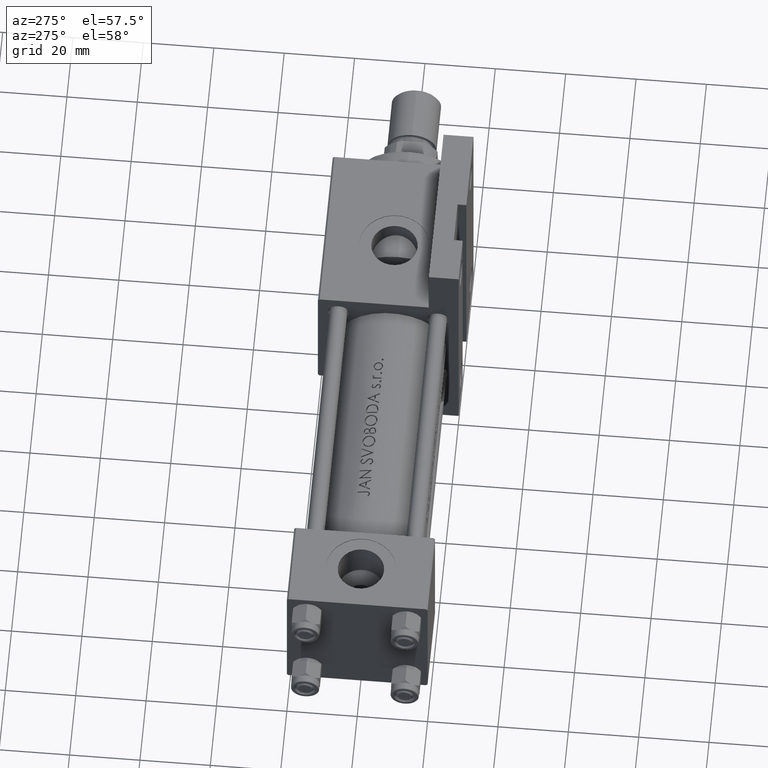
[diagram: clean part render]
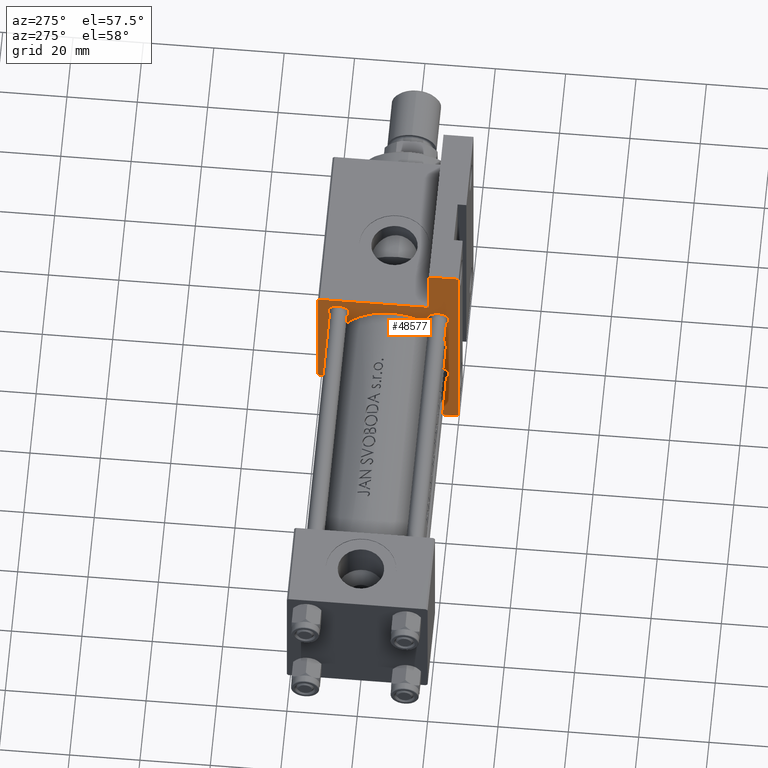
[diagram: same view with one face highlighted and labeled with its STEP entity id]
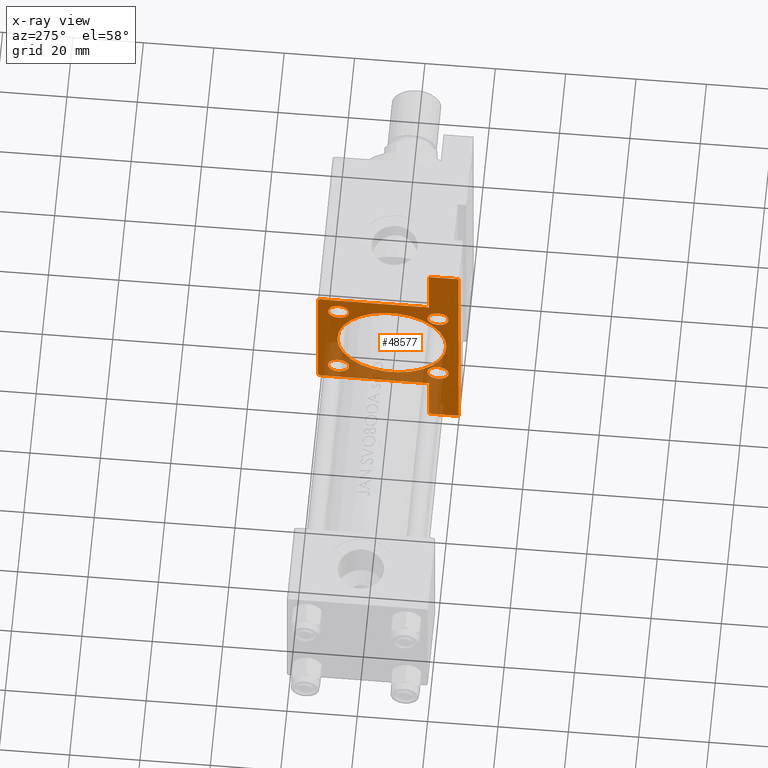
[diagram: x-ray of the same camera — body ghosted, the highlighted face saturated]
A machine part, auxiliary view. The second image highlights one B-rep face of the part: STEP entity #48577.
The next image is the same camera in x-ray: the body ghosted, the highlighted face saturated — about 30% of this face is hidden behind the body in this view.
In plain terms, the highlighted planar face has unit normal (-1, 0, -0).
Its self-contained STEP definition (entity closure, byte-faithful):
#78 = EDGE_CURVE ( 'NONE', #47888, #5638, #35546, .T. ) ;
#119 = EDGE_CURVE ( 'NONE', #6375, #11216, #35061, .T. ) ;
#660 = DIRECTION ( 'NONE',  ( 0.000000000000000000, 0.000000000000000000, -1.000000000000000000 ) ) ;
#774 = EDGE_LOOP ( 'NONE', ( #18438, #9731 ) ) ;
#1126 = AXIS2_PLACEMENT_3D ( 'NONE', #43858, #9372, #24740 ) ;
#1671 = DIRECTION ( 'NONE',  ( 0.000000000000000000, 0.000000000000000000, 1.000000000000000000 ) ) ;
#1688 = DIRECTION ( 'NONE',  ( 1.000000000000000000, 0.000000000000000000, 0.000000000000000000 ) ) ;
#2001 = CIRCLE ( 'NONE', #31775, 15.50000000000000711 ) ;
#2172 = ORIENTED_EDGE ( 'NONE', *, *, #39445, .T. ) ;
#2354 = EDGE_CURVE ( 'NONE', #38085, #35859, #18529, .T. ) ;
#3202 = AXIS2_PLACEMENT_3D ( 'NONE', #35146, #30882, #5174 ) ;
#3274 = DIRECTION ( 'NONE',  ( 0.000000000000000000, 0.000000000000000000, -1.000000000000000000 ) ) ;
#3338 = ORIENTED_EDGE ( 'NONE', *, *, #30278, .T. ) ;
#3471 = VECTOR ( 'NONE', #19537, 1000.000000000000114 ) ;
#4219 = EDGE_CURVE ( 'NONE', #22435, #11216, #25800, .T. ) ;
#4554 = EDGE_CURVE ( 'NONE', #35824, #47461, #2001, .T. ) ;
#4823 = CARTESIAN_POINT ( 'NONE',  ( 101.0000000000000000, 0.000000000000000000, 0.000000000000000000 ) ) ;
#5174 = DIRECTION ( 'NONE',  ( 0.000000000000000000, 0.000000000000000000, 1.000000000000000000 ) ) ;
#5638 = VERTEX_POINT ( 'NONE', #40288 ) ;
#6375 = VERTEX_POINT ( 'NONE', #48938 ) ;
#7224 = CIRCLE ( 'NONE', #3202, 3.000000000000004441 ) ;
#7236 = CARTESIAN_POINT ( 'NONE',  ( 100.9999999999999858, -36.00000000000000000, -11.50000000000000000 ) ) ;
#7624 = DIRECTION ( 'NONE',  ( 0.000000000000000000, 0.000000000000000000, 1.000000000000000000 ) ) ;
#7740 = EDGE_CURVE ( 'NONE', #38085, #10808, #49245, .T. ) ;
#8585 = PLANE ( 'NONE',  #41722 ) ;
#9372 = DIRECTION ( 'NONE',  ( 1.000000000000000000, 0.000000000000000000, 0.000000000000000000 ) ) ;
#9731 = ORIENTED_EDGE ( 'NONE', *, *, #22134, .T. ) ;
#9851 = EDGE_LOOP ( 'NONE', ( #35987, #41241 ) ) ;
#9931 = ORIENTED_EDGE ( 'NONE', *, *, #13365, .T. ) ;
#10415 = EDGE_CURVE ( 'NONE', #30378, #35859, #23107, .T. ) ;
#10790 = CIRCLE ( 'NONE', #44524, 3.000000000000004441 ) ;
#10808 = VERTEX_POINT ( 'NONE', #45445 ) ;
#11216 = VERTEX_POINT ( 'NONE', #39009 ) ;
#11370 = DIRECTION ( 'NONE',  ( 1.000000000000000000, 0.000000000000000000, 0.000000000000000000 ) ) ;
#11471 = DIRECTION ( 'NONE',  ( 0.000000000000000000, 0.000000000000000000, -1.000000000000000000 ) ) ;
#11626 = FACE_BOUND ( 'NONE', #9851, .T. ) ;
#11963 = CARTESIAN_POINT ( 'NONE',  ( 101.0000000000000000, -20.00000000000000355, 19.49999999999999645 ) ) ;
#12848 = VECTOR ( 'NONE', #660, 1000.000000000000000 ) ;
#13365 = EDGE_CURVE ( 'NONE', #23254, #40873, #20719, .T. ) ;
#13400 = EDGE_LOOP ( 'NONE', ( #27602, #34876, #3338, #35152, #2172, #32449, #24529, #15390, #19876, #18258 ) ) ;
#13454 = DIRECTION ( 'NONE',  ( -0.000000000000000000, 0.7071067811865474617, 0.7071067811865474617 ) ) ;
#14317 = VERTEX_POINT ( 'NONE', #47543 ) ;
#14446 = CARTESIAN_POINT ( 'NONE',  ( 101.0000000000000000, -20.00000000000000355, 19.99999999999999645 ) ) ;
#14706 = VERTEX_POINT ( 'NONE', #29550 ) ;
#15390 = ORIENTED_EDGE ( 'NONE', *, *, #7740, .T. ) ;
#15662 = DIRECTION ( 'NONE',  ( 1.000000000000000000, 0.000000000000000000, 0.000000000000000000 ) ) ;
#16633 = AXIS2_PLACEMENT_3D ( 'NONE', #26459, #45065, #45317 ) ;
#17403 = VECTOR ( 'NONE', #35171, 1000.000000000000000 ) ;
#17609 = CARTESIAN_POINT ( 'NONE',  ( 101.0000000000000000, 35.99999999999998579, -11.50000000000000000 ) ) ;
#17658 = EDGE_CURVE ( 'NONE', #49702, #32917, #36444, .T. ) ;
#17838 = AXIS2_PLACEMENT_3D ( 'NONE', #38342, #15662, #7624 ) ;
#18258 = ORIENTED_EDGE ( 'NONE', *, *, #4219, .T. ) ;
#18403 = EDGE_CURVE ( 'NONE', #47461, #35824, #39682, .T. ) ;
#18414 = CARTESIAN_POINT ( 'NONE',  ( 101.0000000000000000, 0.000000000000000000, -1.000000000000007772 ) ) ;
#18438 = ORIENTED_EDGE ( 'NONE', *, *, #17658, .T. ) ;
#18529 = LINE ( 'NONE', #33903, #34447 ) ;
#18866 = CARTESIAN_POINT ( 'NONE',  ( 101.0000000000000000, 19.99999999999999645, 20.00000000000000000 ) ) ;
#18893 = VECTOR ( 'NONE', #22601, 1000.000000000000000 ) ;
#19238 = LINE ( 'NONE', #14446, #27015 ) ;
#19424 = CARTESIAN_POINT ( 'NONE',  ( 101.0000000000000000, -14.15000000000000036, -17.15000000000000568 ) ) ;
#19537 = DIRECTION ( 'NONE',  ( 0.000000000000000000, 0.7071067811865474617, -0.7071067811865474617 ) ) ;
#19807 = CARTESIAN_POINT ( 'NONE',  ( 101.0000000000000000, 19.99999999999999645, -20.00000000000000000 ) ) ;
#19876 = ORIENTED_EDGE ( 'NONE', *, *, #27041, .F. ) ;
#20033 = CARTESIAN_POINT ( 'NONE',  ( 101.0000000000000000, 35.99999999999998579, -11.50000000000000000 ) ) ;
#20251 = EDGE_CURVE ( 'NONE', #6375, #24894, #31141, .T. ) ;
#20280 = LINE ( 'NONE', #20033, #12848 ) ;
#20436 = ORIENTED_EDGE ( 'NONE', *, *, #39227, .T. ) ;
#20719 = CIRCLE ( 'NONE', #36805, 3.000000000000004441 ) ;
#21151 = DIRECTION ( 'NONE',  ( -0.000000000000000000, 1.000000000000000000, -0.000000000000000000 ) ) ;
#22133 = CARTESIAN_POINT ( 'NONE',  ( 101.0000000000000000, 14.15000000000000036, 14.15000000000000036 ) ) ;
#22134 = EDGE_CURVE ( 'NONE', #32917, #49702, #10790, .T. ) ;
#22435 = VERTEX_POINT ( 'NONE', #11963 ) ;
#22454 = CARTESIAN_POINT ( 'NONE',  ( 101.0000000000000000, 14.15000000000000036, 11.14999999999999680 ) ) ;
#22465 = DIRECTION ( 'NONE',  ( 0.000000000000000000, 0.000000000000000000, -1.000000000000000000 ) ) ;
#22572 = DIRECTION ( 'NONE',  ( 1.000000000000000000, 0.000000000000000000, 0.000000000000000000 ) ) ;
#22601 = DIRECTION ( 'NONE',  ( 8.673617379884039416E-16, 1.000000000000000000, 0.000000000000000000 ) ) ;
#22837 = CARTESIAN_POINT ( 'NONE',  ( 101.0000000000000000, -14.15000000000000036, 14.15000000000000036 ) ) ;
#23073 = EDGE_CURVE ( 'NONE', #5638, #47888, #34945, .T. ) ;
#23107 = LINE ( 'NONE', #19807, #17403 ) ;
#23254 = VERTEX_POINT ( 'NONE', #43415 ) ;
#23480 = VERTEX_POINT ( 'NONE', #44903 ) ;
#23724 = ORIENTED_EDGE ( 'NONE', *, *, #18403, .T. ) ;
#24529 = ORIENTED_EDGE ( 'NONE', *, *, #2354, .F. ) ;
#24740 = DIRECTION ( 'NONE',  ( 0.000000000000000000, 0.000000000000000000, -1.000000000000000000 ) ) ;
#24894 = VERTEX_POINT ( 'NONE', #35419 ) ;
#25800 = LINE ( 'NONE', #33595, #47762 ) ;
#26459 = CARTESIAN_POINT ( 'NONE',  ( 101.0000000000000000, -14.15000000000000036, -14.15000000000000036 ) ) ;
#26999 = DIRECTION ( 'NONE',  ( -1.000000000000000000, 0.000000000000000000, -0.000000000000000000 ) ) ;
#27015 = VECTOR ( 'NONE', #29836, 1000.000000000000000 ) ;
#27041 = EDGE_CURVE ( 'NONE', #22435, #10808, #19238, .T. ) ;
#27602 = ORIENTED_EDGE ( 'NONE', *, *, #119, .F. ) ;
#27906 = CIRCLE ( 'NONE', #16633, 3.000000000000004441 ) ;
#28329 = EDGE_CURVE ( 'NONE', #40873, #23254, #27906, .T. ) ;
#28332 = VECTOR ( 'NONE', #47112, 1000.000000000000000 ) ;
#28706 = CARTESIAN_POINT ( 'NONE',  ( 100.9999999999999858, -36.00000000000000000, -11.50000000000000000 ) ) ;
#28943 = AXIS2_PLACEMENT_3D ( 'NONE', #22837, #38183, #45979 ) ;
#29440 = DIRECTION ( 'NONE',  ( 1.000000000000000000, 0.000000000000000000, 0.000000000000000000 ) ) ;
#29550 = CARTESIAN_POINT ( 'NONE',  ( 101.0000000000000000, 19.99999999999999645, -11.50000000000000000 ) ) ;
#29613 = ORIENTED_EDGE ( 'NONE', *, *, #39302, .T. ) ;
#29836 = DIRECTION ( 'NONE',  ( 0.000000000000000000, 8.673617379884036705E-17, -1.000000000000000000 ) ) ;
#29878 = CARTESIAN_POINT ( 'NONE',  ( 101.0000000000000000, 14.15000000000000036, -14.15000000000000036 ) ) ;
#29959 = CARTESIAN_POINT ( 'NONE',  ( 101.0000000000000000, 0.000000000000000000, 14.49999999999999822 ) ) ;
#30278 = EDGE_CURVE ( 'NONE', #24894, #14706, #42024, .T. ) ;
#30378 = VERTEX_POINT ( 'NONE', #39480 ) ;
#30482 = ORIENTED_EDGE ( 'NONE', *, *, #28329, .T. ) ;
#30882 = DIRECTION ( 'NONE',  ( 1.000000000000000000, 0.000000000000000000, 0.000000000000000000 ) ) ;
#31019 = FACE_BOUND ( 'NONE', #46291, .T. ) ;
#31141 = LINE ( 'NONE', #40592, #3471 ) ;
#31279 = CARTESIAN_POINT ( 'NONE',  ( 100.9999999999999858, -36.00000000000000000, -20.00000000000000000 ) ) ;
#31351 = CIRCLE ( 'NONE', #28943, 3.000000000000004441 ) ;
#31527 = CARTESIAN_POINT ( 'NONE',  ( 101.0000000000000000, 1.898202538678398346E-15, -16.50000000000001421 ) ) ;
#31634 = ORIENTED_EDGE ( 'NONE', *, *, #4554, .T. ) ;
#31775 = AXIS2_PLACEMENT_3D ( 'NONE', #18414, #11370, #22465 ) ;
#31789 = CARTESIAN_POINT ( 'NONE',  ( 101.0000000000000000, 19.99999999999999645, 20.00000000000000000 ) ) ;
#32389 = CARTESIAN_POINT ( 'NONE',  ( 101.0000000000000000, -14.15000000000000036, -14.15000000000000036 ) ) ;
#32449 = ORIENTED_EDGE ( 'NONE', *, *, #10415, .T. ) ;
#32917 = VERTEX_POINT ( 'NONE', #22454 ) ;
#33595 = CARTESIAN_POINT ( 'NONE',  ( 101.0000000000000000, -19.75000000000000000, 19.75000000000000000 ) ) ;
#33735 = EDGE_LOOP ( 'NONE', ( #23724, #31634 ) ) ;
#33903 = CARTESIAN_POINT ( 'NONE',  ( 100.9999999999999858, -36.00000000000000000, -11.50000000000000000 ) ) ;
#34367 = VECTOR ( 'NONE', #3274, 1000.000000000000000 ) ;
#34447 = VECTOR ( 'NONE', #11471, 1000.000000000000000 ) ;
#34876 = ORIENTED_EDGE ( 'NONE', *, *, #20251, .T. ) ;
#34945 = CIRCLE ( 'NONE', #38963, 3.000000000000004441 ) ;
#35061 = LINE ( 'NONE', #31789, #28332 ) ;
#35146 = CARTESIAN_POINT ( 'NONE',  ( 101.0000000000000000, -14.15000000000000036, 14.15000000000000036 ) ) ;
#35152 = ORIENTED_EDGE ( 'NONE', *, *, #47582, .T. ) ;
#35171 = DIRECTION ( 'NONE',  ( 0.000000000000000000, -1.000000000000000000, 0.000000000000000000 ) ) ;
#35419 = CARTESIAN_POINT ( 'NONE',  ( 101.0000000000000000, 19.99999999999999645, 19.50000000000001421 ) ) ;
#35532 = FACE_OUTER_BOUND ( 'NONE', #13400, .T. ) ;
#35546 = CIRCLE ( 'NONE', #17838, 3.000000000000004441 ) ;
#35824 = VERTEX_POINT ( 'NONE', #31527 ) ;
#35859 = VERTEX_POINT ( 'NONE', #31279 ) ;
#35987 = ORIENTED_EDGE ( 'NONE', *, *, #23073, .T. ) ;
#36444 = CIRCLE ( 'NONE', #49295, 3.000000000000004441 ) ;
#36805 = AXIS2_PLACEMENT_3D ( 'NONE', #32389, #44684, #1671 ) ;
#36986 = VECTOR ( 'NONE', #21151, 1000.000000000000000 ) ;
#38085 = VERTEX_POINT ( 'NONE', #28706 ) ;
#38183 = DIRECTION ( 'NONE',  ( 1.000000000000000000, 0.000000000000000000, 0.000000000000000000 ) ) ;
#38342 = CARTESIAN_POINT ( 'NONE',  ( 101.0000000000000000, 14.15000000000000036, -14.15000000000000036 ) ) ;
#38963 = AXIS2_PLACEMENT_3D ( 'NONE', #29878, #22572, #45207 ) ;
#39009 = CARTESIAN_POINT ( 'NONE',  ( 101.0000000000000000, -19.50000000000000355, 19.99999999999999645 ) ) ;
#39227 = EDGE_CURVE ( 'NONE', #46173, #14317, #31351, .T. ) ;
#39302 = EDGE_CURVE ( 'NONE', #14317, #46173, #7224, .T. ) ;
#39445 = EDGE_CURVE ( 'NONE', #23480, #30378, #20280, .T. ) ;
#39480 = CARTESIAN_POINT ( 'NONE',  ( 101.0000000000000000, 35.99999999999998579, -20.00000000000000000 ) ) ;
#39541 = FACE_BOUND ( 'NONE', #49731, .T. ) ;
#39682 = CIRCLE ( 'NONE', #1126, 15.50000000000000711 ) ;
#40013 = CARTESIAN_POINT ( 'NONE',  ( 101.0000000000000000, 14.15000000000000036, 17.15000000000000568 ) ) ;
#40288 = CARTESIAN_POINT ( 'NONE',  ( 101.0000000000000000, 14.15000000000000036, -11.14999999999999680 ) ) ;
#40592 = CARTESIAN_POINT ( 'NONE',  ( 101.0000000000000000, 19.75000000000000355, 19.75000000000000355 ) ) ;
#40873 = VERTEX_POINT ( 'NONE', #19424 ) ;
#41241 = ORIENTED_EDGE ( 'NONE', *, *, #78, .T. ) ;
#41722 = AXIS2_PLACEMENT_3D ( 'NONE', #4823, #26999, #42327 ) ;
#42024 = LINE ( 'NONE', #18866, #34367 ) ;
#42204 = CARTESIAN_POINT ( 'NONE',  ( 101.0000000000000000, 14.15000000000000036, -17.15000000000000568 ) ) ;
#42327 = DIRECTION ( 'NONE',  ( -0.000000000000000000, 0.000000000000000000, 1.000000000000000000 ) ) ;
#42579 = FACE_BOUND ( 'NONE', #33735, .T. ) ;
#43415 = CARTESIAN_POINT ( 'NONE',  ( 101.0000000000000000, -14.15000000000000036, -11.14999999999999680 ) ) ;
#43858 = CARTESIAN_POINT ( 'NONE',  ( 101.0000000000000000, 0.000000000000000000, -1.000000000000007772 ) ) ;
#43967 = DIRECTION ( 'NONE',  ( 0.000000000000000000, 0.000000000000000000, 1.000000000000000000 ) ) ;
#44105 = CARTESIAN_POINT ( 'NONE',  ( 101.0000000000000000, -14.15000000000000036, 11.14999999999999503 ) ) ;
#44300 = LINE ( 'NONE', #17609, #36986 ) ;
#44524 = AXIS2_PLACEMENT_3D ( 'NONE', #47488, #1688, #43967 ) ;
#44684 = DIRECTION ( 'NONE',  ( 1.000000000000000000, 0.000000000000000000, 0.000000000000000000 ) ) ;
#44903 = CARTESIAN_POINT ( 'NONE',  ( 101.0000000000000000, 35.99999999999998579, -11.50000000000000000 ) ) ;
#45065 = DIRECTION ( 'NONE',  ( 1.000000000000000000, 0.000000000000000000, 0.000000000000000000 ) ) ;
#45207 = DIRECTION ( 'NONE',  ( 0.000000000000000000, 0.000000000000000000, 1.000000000000000000 ) ) ;
#45282 = DIRECTION ( 'NONE',  ( 0.000000000000000000, 0.000000000000000000, 1.000000000000000000 ) ) ;
#45317 = DIRECTION ( 'NONE',  ( 0.000000000000000000, 0.000000000000000000, 1.000000000000000000 ) ) ;
#45445 = CARTESIAN_POINT ( 'NONE',  ( 101.0000000000000000, -20.00000000000000355, -11.50000000000000000 ) ) ;
#45979 = DIRECTION ( 'NONE',  ( 0.000000000000000000, 0.000000000000000000, 1.000000000000000000 ) ) ;
#46112 = FACE_BOUND ( 'NONE', #774, .T. ) ;
#46173 = VERTEX_POINT ( 'NONE', #44105 ) ;
#46291 = EDGE_LOOP ( 'NONE', ( #9931, #30482 ) ) ;
#47112 = DIRECTION ( 'NONE',  ( 0.000000000000000000, -1.000000000000000000, -8.673617379884035472E-17 ) ) ;
#47461 = VERTEX_POINT ( 'NONE', #29959 ) ;
#47488 = CARTESIAN_POINT ( 'NONE',  ( 101.0000000000000000, 14.15000000000000036, 14.15000000000000036 ) ) ;
#47543 = CARTESIAN_POINT ( 'NONE',  ( 101.0000000000000000, -14.15000000000000036, 17.15000000000000568 ) ) ;
#47582 = EDGE_CURVE ( 'NONE', #14706, #23480, #44300, .T. ) ;
#47762 = VECTOR ( 'NONE', #13454, 1000.000000000000114 ) ;
#47888 = VERTEX_POINT ( 'NONE', #42204 ) ;
#48577 = ADVANCED_FACE ( 'NONE', ( #39541, #46112, #11626, #31019, #42579, #35532 ), #8585, .T. ) ;
#48938 = CARTESIAN_POINT ( 'NONE',  ( 101.0000000000000000, 19.50000000000001066, 20.00000000000000000 ) ) ;
#49245 = LINE ( 'NONE', #7236, #18893 ) ;
#49295 = AXIS2_PLACEMENT_3D ( 'NONE', #22133, #29440, #45282 ) ;
#49702 = VERTEX_POINT ( 'NONE', #40013 ) ;
#49731 = EDGE_LOOP ( 'NONE', ( #29613, #20436 ) ) ;